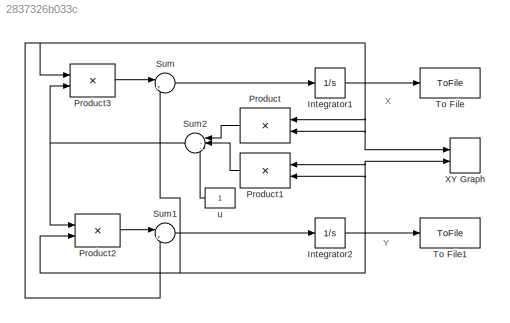
MODEL slx_2837326b033c
KIND model
CONFIG AbsTol = auto
CONFIG EnableMultiTasking = on
CONFIG FixedStep = auto
CONFIG MaxStep = auto
CONFIG MinStep = auto
CONFIG RelTol = 1e-3
CONFIG SampleTimeConstraint = Unconstrained
CONFIG SolverName = ode45
CONFIG StartTime = 0.0
CONFIG StopTime = 20
BLOCK [Integrator] Integrator1
  InitialCondition = 1.8
  Ports = [1, 1]
BLOCK [Integrator] Integrator2
  InitialCondition = 1.8
  Ports = [1, 1]
BLOCK [Product] Product
  NameLocation = top
  OutDataTypeStr = Inherit: Same as first input
  Ports = [2, 1]
  SaturateOnIntegerOverflow = on
BLOCK [Product] Product1
  NameLocation = top
  OutDataTypeStr = Inherit: Same as first input
  Ports = [2, 1]
  SaturateOnIntegerOverflow = on
BLOCK [Product] Product2
  OutDataTypeStr = Inherit: Same as first input
  Ports = [2, 1]
  SaturateOnIntegerOverflow = on
BLOCK [Product] Product3
  OutDataTypeStr = Inherit: Same as first input
  Ports = [2, 1]
  SaturateOnIntegerOverflow = on
BLOCK [Sum] Sum
  Inputs = |+-
  Ports = [2, 1]
  SaturateOnIntegerOverflow = on
BLOCK [Sum] Sum1
  Inputs = |++
  Ports = [2, 1]
  SaturateOnIntegerOverflow = on
BLOCK [Sum] Sum2
  Inputs = |--+
  NameLocation = top
  Ports = [3, 1]
  SaturateOnIntegerOverflow = on
BLOCK [ToFile] To File
  Filename = x.mat
  MatrixName = x
  Ports = [1]
  SampleTime = 0.001
BLOCK [ToFile] To File1
  Filename = y.mat
  MatrixName = y
  Ports = [1]
  SampleTime = 0.001
BLOCK [Record] XY Graph
  CompatibilityTag = XY
  FileSettingsInternal = {"entries":[{"content":{"excelSettings":{"content":{},"type":"Streamout.ExcelSettings"}},"type":"Streamout.FileSettingStorage","uuid":"dae918f3-7d2f-479d-a086-fab08fd9a2cf"}],"packageUris":["http://schema.mathworks.com/mf0/streamout_blocks/R2020a"],"version":"1.0"}
  Layout = [1 1]
  Ports = [2]
  SignalsInternal = {"entries":[{"content":{"signals":[{"content":{"blockPath":["fig2_50_simulink/XY Graph"],"channel":[],"dimensions":[1],"domain":"fig2_50_simulink/XY Graph","lineColor":"#0072bd","plots":[],"port":1,"sid":[""],"signalID":105,"signalName":"Integrator1"},"type":"RecordBlkView.Signal","uuid":"44b29ade-b787-4e18-b852-6404ba3b93e4"},{"content":{"blockPath":["fig2_50_simulink/XY Graph"],"channel":[],"dim...<+399ch>
  VisualizationBindings = {"xyplotplugin":{"info":[{"series":[],"subplotID":1}]}}
  st = 0.02
BLOCK [Constant] u
ANNOTATION (root): X
ANNOTATION (root): Y
NET Integrator1:1 -> Product3:1, Product:1, Product:2, Sum1:2, To File:1, XY Graph:1
NET Integrator2:1 -> Product1:1, Product1:2, Product2:2, Sum:2, To File1:1, XY Graph:2
LINE Product1:1 -> Sum2:2
LINE Product2:1 -> Sum1:1
LINE Product3:1 -> Sum:1
LINE Product:1 -> Sum2:1
LINE Sum1:1 -> Integrator2:1
NET Sum2:1 -> Product2:1, Product3:2
LINE Sum:1 -> Integrator1:1
LINE u:1 -> Sum2:3
note: NET lines group one-source signal fan-out (src -> all destinations, sorted); 1:1 wires keep LINE
